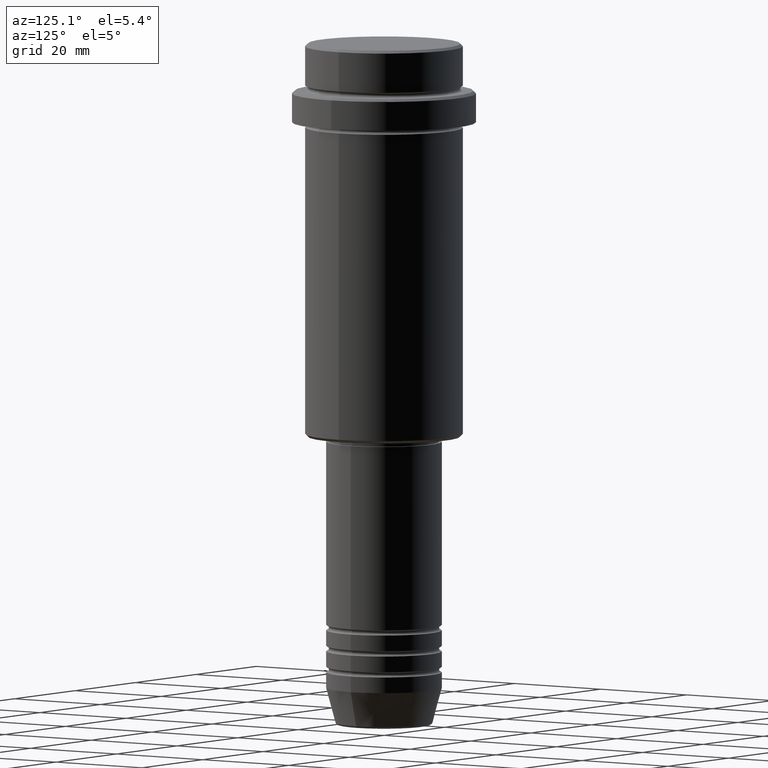
[diagram: clean part render]
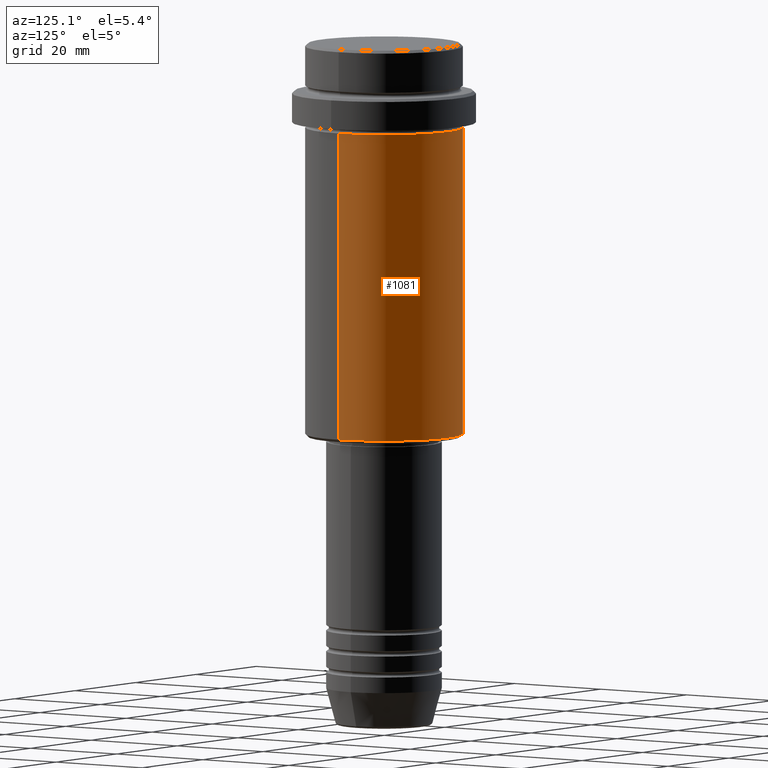
[diagram: same view with one face highlighted and labeled with its STEP entity id]
A machine part, auxiliary view. The second image highlights one B-rep face of the part: STEP entity #1081.
In plain terms, the highlighted cylindrical surface (partial cylindrical patch) has radius 15 mm, axis along (-0, -0, 1).
Its self-contained STEP definition (entity closure, byte-faithful):
#33 = AXIS2_PLACEMENT_3D ( 'NONE', #603, #622, #838 ) ;
#72 = VERTEX_POINT ( 'NONE', #1384 ) ;
#96 = VERTEX_POINT ( 'NONE', #841 ) ;
#137 = VERTEX_POINT ( 'NONE', #1251 ) ;
#145 = EDGE_LOOP ( 'NONE', ( #283, #906, #743, #1388 ) ) ;
#191 = FACE_OUTER_BOUND ( 'NONE', #145, .T. ) ;
#255 = EDGE_CURVE ( 'NONE', #72, #137, #1264, .T. ) ;
#282 = CYLINDRICAL_SURFACE ( 'NONE', #33, 15.00000000000000000 ) ;
#283 = ORIENTED_EDGE ( 'NONE', *, *, #511, .T. ) ;
#310 = CARTESIAN_POINT ( 'NONE',  ( 0.000000000000000000, 0.000000000000000000, -74.50000000000004263 ) ) ;
#325 = DIRECTION ( 'NONE',  ( -0.000000000000000000, -0.000000000000000000, 1.000000000000000000 ) ) ;
#345 = LINE ( 'NONE', #1071, #1002 ) ;
#462 = LINE ( 'NONE', #1230, #1040 ) ;
#476 = DIRECTION ( 'NONE',  ( 1.000000000000000000, 0.000000000000000000, 0.000000000000000000 ) ) ;
#492 = CARTESIAN_POINT ( 'NONE',  ( 0.000000000000000000, 0.000000000000000000, -16.00000000000000000 ) ) ;
#511 = EDGE_CURVE ( 'NONE', #96, #1367, #768, .T. ) ;
#578 = CARTESIAN_POINT ( 'NONE',  ( -15.00000000000000000, 1.836970198721029589E-15, -74.50000000000004263 ) ) ;
#603 = CARTESIAN_POINT ( 'NONE',  ( 0.000000000000000000, 0.000000000000000000, 0.000000000000000000 ) ) ;
#622 = DIRECTION ( 'NONE',  ( -0.000000000000000000, -0.000000000000000000, 1.000000000000000000 ) ) ;
#674 = EDGE_CURVE ( 'NONE', #1367, #137, #345, .T. ) ;
#743 = ORIENTED_EDGE ( 'NONE', *, *, #255, .F. ) ;
#768 = CIRCLE ( 'NONE', #1239, 15.00000000000000000 ) ;
#820 = AXIS2_PLACEMENT_3D ( 'NONE', #492, #1156, #476 ) ;
#838 = DIRECTION ( 'NONE',  ( 1.000000000000000000, 0.000000000000000000, 0.000000000000000000 ) ) ;
#841 = CARTESIAN_POINT ( 'NONE',  ( 15.00000000000000000, 0.000000000000000000, -74.50000000000004263 ) ) ;
#866 = DIRECTION ( 'NONE',  ( -0.000000000000000000, -0.000000000000000000, 1.000000000000000000 ) ) ;
#906 = ORIENTED_EDGE ( 'NONE', *, *, #674, .T. ) ;
#992 = EDGE_CURVE ( 'NONE', #96, #72, #462, .T. ) ;
#1002 = VECTOR ( 'NONE', #325, 1000.000000000000000 ) ;
#1040 = VECTOR ( 'NONE', #1118, 1000.000000000000000 ) ;
#1071 = CARTESIAN_POINT ( 'NONE',  ( -15.00000000000000000, 1.836970198721029589E-15, 0.000000000000000000 ) ) ;
#1081 = ADVANCED_FACE ( 'NONE', ( #191 ), #282, .T. ) ;
#1118 = DIRECTION ( 'NONE',  ( -0.000000000000000000, -0.000000000000000000, 1.000000000000000000 ) ) ;
#1156 = DIRECTION ( 'NONE',  ( -0.000000000000000000, -0.000000000000000000, 1.000000000000000000 ) ) ;
#1230 = CARTESIAN_POINT ( 'NONE',  ( 15.00000000000000000, 0.000000000000000000, 0.000000000000000000 ) ) ;
#1239 = AXIS2_PLACEMENT_3D ( 'NONE', #310, #866, #1290 ) ;
#1251 = CARTESIAN_POINT ( 'NONE',  ( -15.00000000000000355, 1.836970198721029983E-15, -16.00000000000000000 ) ) ;
#1264 = CIRCLE ( 'NONE', #820, 15.00000000000000178 ) ;
#1290 = DIRECTION ( 'NONE',  ( -1.000000000000000000, 0.000000000000000000, 0.000000000000000000 ) ) ;
#1367 = VERTEX_POINT ( 'NONE', #578 ) ;
#1384 = CARTESIAN_POINT ( 'NONE',  ( 15.00000000000000178, 0.000000000000000000, -16.00000000000000000 ) ) ;
#1388 = ORIENTED_EDGE ( 'NONE', *, *, #992, .F. ) ;